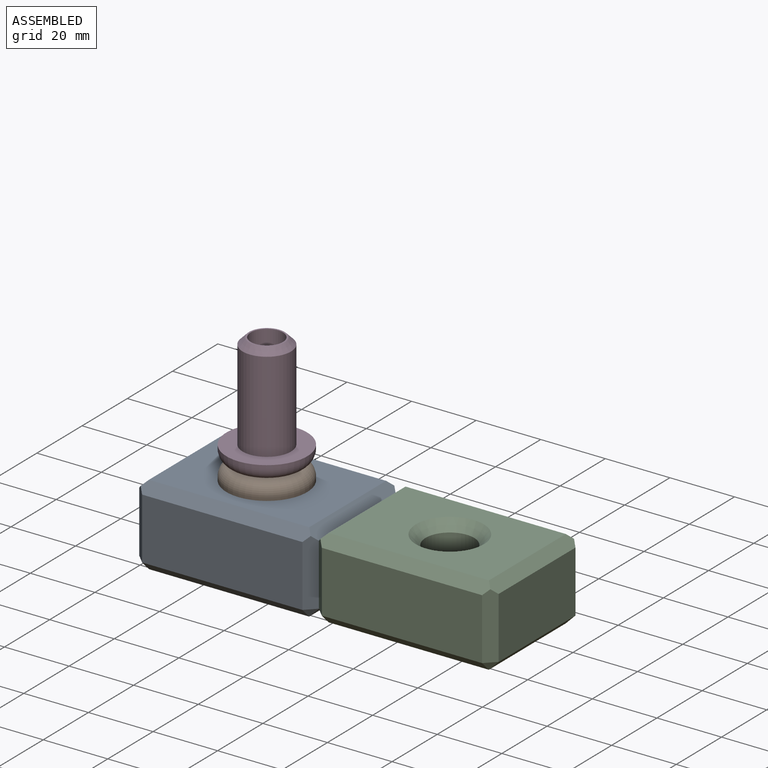
[diagram: assembled view]
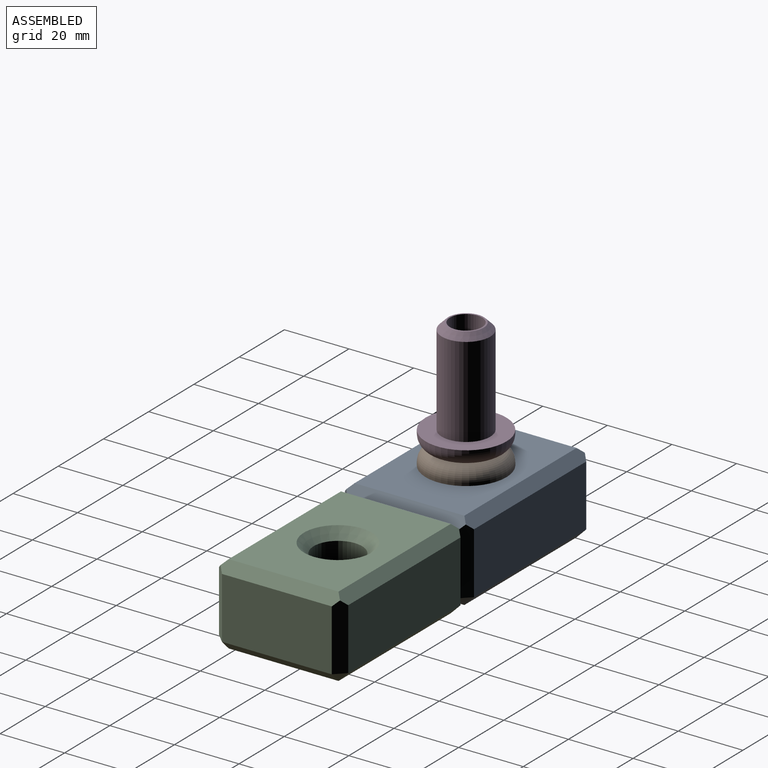
[diagram: assembled view, second angle]
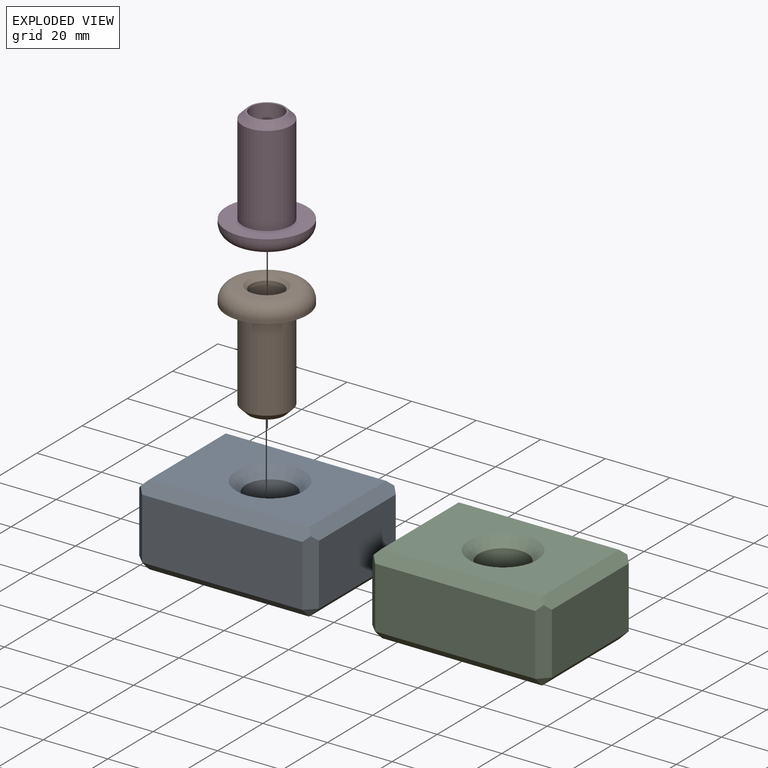
[diagram: exploded view]
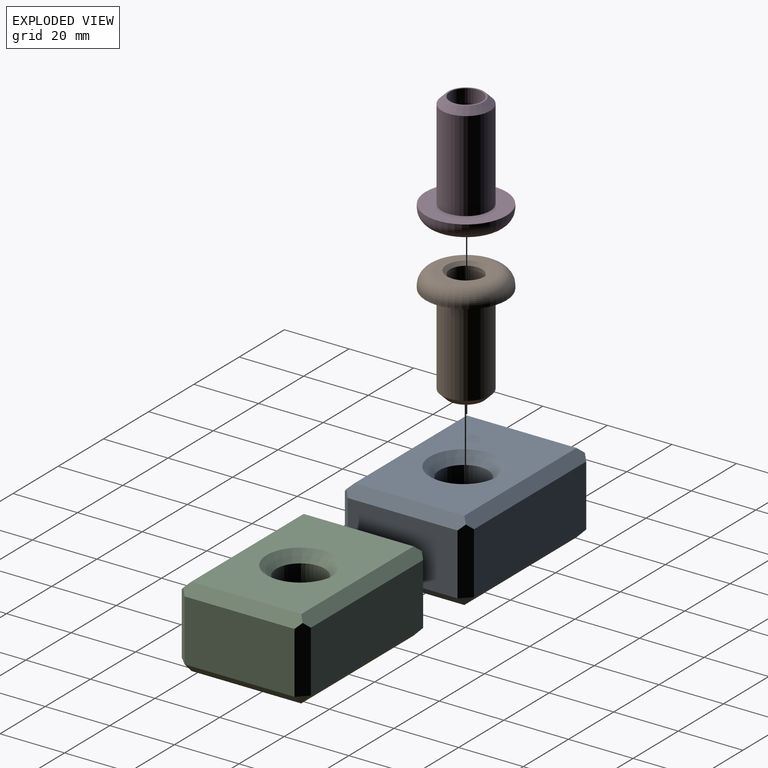
[diagram: exploded view, second angle]
ASSEMBLY  parts=4 mates=3
PART A: 25 faces, bbox 55.6x40x25 mm
  f0: plane 34x19mm, normal (1,0,0), area 646mm2, adj f11,f17,f21,f23
  f1: plane 49.63x19mm, normal (0,1,0), area 943mm2, adj f9,f14,f20,f23
  f2: plane 34x19mm, normal (-1,0,0), area 646mm2, adj f8,f12,f14,f15
  f3: plane 49.63x19mm, normal (0,-1,0), area 943mm2, adj f10,f12,f16,f17
  f4: cylinder r=7.5mm len=19mm, axis (0,0,-1), area 895.4mm2, adj f7,f24
  f5: plane 49.63x34mm, normal (0,0,1), area 1341.1mm2, adj f7,f8,f9,f10,f11
  f6: plane 49.63x34mm, normal (0,0,-1), area 1341.1mm2, adj f15,f16,f20,f21,f24
  f7: cone r=7.5mm half-angle=45deg, axis (0,0,1), area 239.9mm2, adj f4,f5
  f8: plane 37x3mm, normal (-0.71,0,0.71), area 150.6mm2, adj f2,f5,f9,f10,f12,f14
  f9: plane 52.63x3mm, normal (0,0.71,0.71), area 216.9mm2, adj f1,f5,f8,f11,f14,f23
  f10: plane 52.63x3mm, normal (0,-0.71,0.71), area 216.9mm2, adj f3,f5,f8,f11,f12,f17
  f11: plane 37x3mm, normal (0.71,0,0.71), area 150.6mm2, adj f0,f5,f9,f10,f17,f23
  f12: plane 20.5x3mm, normal (-0.71,-0.71,0), area 83.8mm2, adj f2,f3,f8,f10,f13
  f13: plane 3x3mm, normal (-0.58,-0.58,-0.58), area 7.8mm2, adj f12,f15,f16
  f14: plane 20.5x3mm, normal (-0.71,0.71,0), area 83.8mm2, adj f1,f2,f8,f9,f18
  f15: plane 34x3mm, normal (-0.71,0,-0.71), area 144.2mm2, adj f2,f6,f13,f18
  f16: plane 49.63x3mm, normal (0,-0.71,-0.71), area 210.6mm2, adj f3,f6,f13,f19
  f17: plane 20.5x3mm, normal (0.71,-0.71,0), area 83.8mm2, adj f0,f3,f10,f11,f19
  f18: plane 3x3mm, normal (-0.58,0.58,-0.58), area 7.8mm2, adj f14,f15,f20
  f19: plane 3x3mm, normal (0.58,-0.58,-0.58), area 7.8mm2, adj f16,f17,f21
  f20: plane 49.63x3mm, normal (0,0.71,-0.71), area 210.6mm2, adj f1,f6,f18,f22
  f21: plane 34x3mm, normal (0.71,0,-0.71), area 144.2mm2, adj f0,f6,f19,f22
  f22: plane 3x3mm, normal (0.58,0.58,-0.58), area 7.8mm2, adj f20,f21,f23
  f23: plane 20.5x3mm, normal (0.71,0.71,0), area 83.8mm2, adj f0,f1,f9,f11,f22
  f24: cone r=10.5mm half-angle=45deg, axis (0,0,-1), area 239.9mm2, adj f4,f6
PART B: 9 faces, bbox 27.1x35x27.1 mm
  f0: cylinder r=7.5mm len=28mm, axis (0,1,0), area 1319.5mm2, adj f4,f6
  f1: plane 11x11mm, normal (0,1,0), area 16.5mm2, adj f6,f7
  f2: cylinder r=12.5mm len=25mm, axis (0,1,0), area 78.5mm2, adj f4,f5
  f3: plane 17x17mm, normal (0,-1,0), area 113.9mm2, adj f5,f8
  f4: plane 25x25mm, normal (0,1,0), area 314.2mm2, adj f0,f2
  f5: torus R=8.5mm, axis (0,-1,0), area 436.1mm2, adj f2,f3
  f6: cone r=7.5mm half-angle=45deg, axis (0,-1,0), area 115.5mm2, adj f0,f1
  f7: cylinder r=5mm len=34mm, axis (0,-1,0), area 1068.1mm2, adj f1,f8
  f8: cone r=5mm half-angle=45deg, axis (0,-1,0), area 48.9mm2, adj f3,f7
PART C: same geometry as A
PART D: same geometry as B
PLACE A t=(-2.44,-16.14,-8.91)mm
PLACE B rot(axis=(-1,0,0),90deg) t=(-3.47,-16.14,-13.91)mm
PLACE C t=(53.19,-16.14,-8.91)mm
PLACE D rot(axis=(1,0,0),90deg) t=(-3.47,-16.14,56.09)mm
MATE fastened D.f2 <-> B.f2  axis (0,0,-1) through (-3.47,-16.14,21.09)mm
MATE fastened A.f0 <-> C.f2  axis (1,0,0) through (24.56,-16.14,3.59)mm
MATE fastened A.f5 <-> B.f2  axis (0,0,1) through (-3.47,-16.14,16.09)mm
